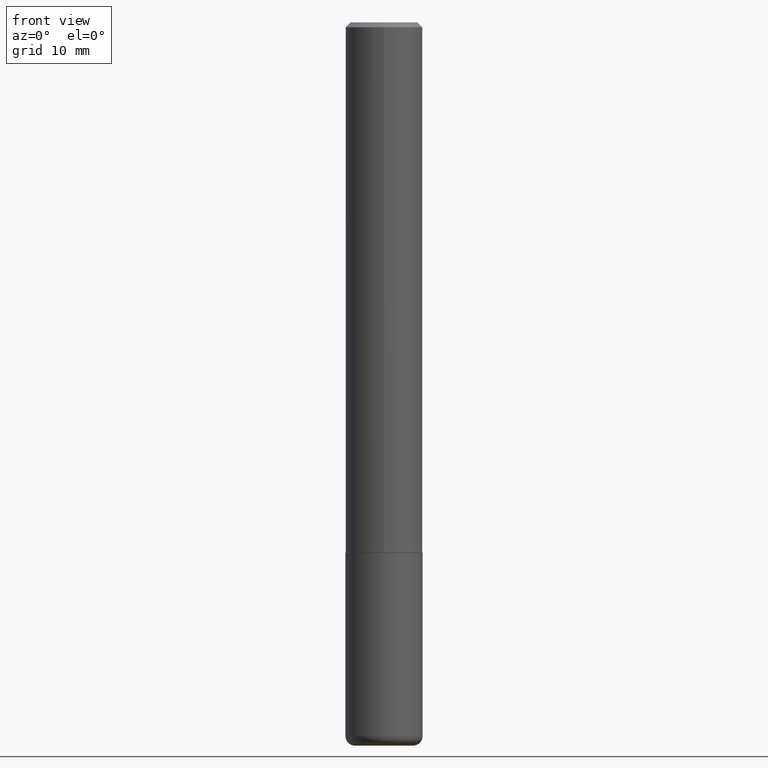
[diagram: clean part render]
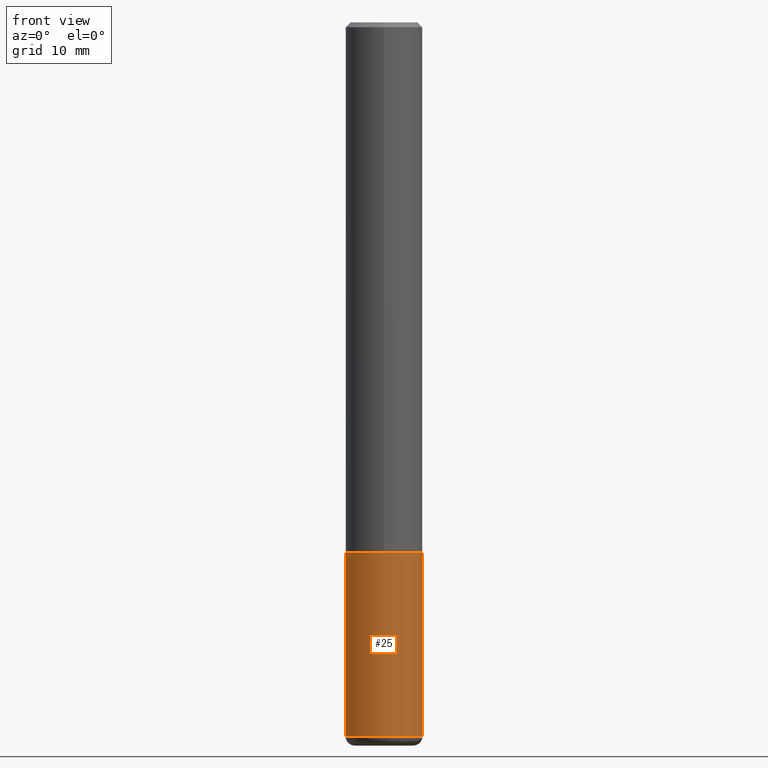
[diagram: same view with one face highlighted and labeled with its STEP entity id]
A machine part, front view. The second image highlights one B-rep face of the part: STEP entity #25.
In plain terms, the highlighted cylindrical surface (partial cylindrical patch) has radius 4.0005 mm, axis along (-0, 0, 1).
Its self-contained STEP definition (entity closure, byte-faithful):
#6 = CARTESIAN_POINT ( 'NONE',  ( 0.000000000000000000, 0.000000000000000000, 0.000000000000000000 ) ) ;
#23 = DIRECTION ( 'NONE',  ( -2.445468806185136877E-29, 3.491481338843145188E-15, 1.000000000000000000 ) ) ;
#25 = ADVANCED_FACE ( 'NONE', ( #176 ), #396, .T. ) ;
#26 = ORIENTED_EDGE ( 'NONE', *, *, #55, .T. ) ;
#36 = ORIENTED_EDGE ( 'NONE', *, *, #198, .F. ) ;
#45 = CARTESIAN_POINT ( 'NONE',  ( 0.1575000000000000289, -1.127189835432120758E-14, -2.913399999999999768 ) ) ;
#55 = EDGE_CURVE ( 'NONE', #321, #323, #145, .T. ) ;
#85 = CARTESIAN_POINT ( 'NONE',  ( -0.1575000000000000289, -9.052976923763463288E-15, -2.913399999999999768 ) ) ;
#103 = ORIENTED_EDGE ( 'NONE', *, *, #260, .F. ) ;
#145 = CIRCLE ( 'NONE', #293, 0.1575000000000000011 ) ;
#153 = DIRECTION ( 'NONE',  ( -2.445468806185136597E-29, 3.491481338843145583E-15, 1.000000000000000000 ) ) ;
#154 = VECTOR ( 'NONE', #342, 39.37007874015748143 ) ;
#156 = CARTESIAN_POINT ( 'NONE',  ( -0.1575000000000000011, 1.119104808822157801E-15, -7.747322767151475583E-30 ) ) ;
#157 = DIRECTION ( 'NONE',  ( 1.000000000000000000, -6.982962677686268288E-15, 0.000000000000000000 ) ) ;
#176 = FACE_OUTER_BOUND ( 'NONE', #223, .T. ) ;
#180 = DIRECTION ( 'NONE',  ( 1.000000000000000000, -6.982962677686261977E-15, 0.000000000000000000 ) ) ;
#193 = VERTEX_POINT ( 'NONE', #310 ) ;
#198 = EDGE_CURVE ( 'NONE', #321, #193, #280, .T. ) ;
#208 = CARTESIAN_POINT ( 'NONE',  ( 0.1575000000000000011, -1.099816621735586889E-15, 7.679978421878598033E-30 ) ) ;
#210 = EDGE_CURVE ( 'NONE', #323, #232, #243, .T. ) ;
#211 = DIRECTION ( 'NONE',  ( -2.445468806185136597E-29, 3.491481338843145583E-15, 1.000000000000000000 ) ) ;
#223 = EDGE_LOOP ( 'NONE', ( #36, #26, #257, #103 ) ) ;
#232 = VERTEX_POINT ( 'NONE', #240 ) ;
#240 = CARTESIAN_POINT ( 'NONE',  ( 0.1575000000000000011, -8.660270312866534114E-15, -2.165399999999999991 ) ) ;
#243 = LINE ( 'NONE', #208, #154 ) ;
#257 = ORIENTED_EDGE ( 'NONE', *, *, #210, .T. ) ;
#260 = EDGE_CURVE ( 'NONE', #193, #232, #286, .T. ) ;
#264 = VECTOR ( 'NONE', #23, 39.37007874015748143 ) ;
#280 = LINE ( 'NONE', #156, #264 ) ;
#286 = CIRCLE ( 'NONE', #368, 0.1575000000000000011 ) ;
#293 = AXIS2_PLACEMENT_3D ( 'NONE', #331, #153, #180 ) ;
#310 = CARTESIAN_POINT ( 'NONE',  ( -0.1575000000000000011, -7.747162903036124976E-15, -2.165399999999999991 ) ) ;
#321 = VERTEX_POINT ( 'NONE', #85 ) ;
#323 = VERTEX_POINT ( 'NONE', #45 ) ;
#331 = CARTESIAN_POINT ( 'NONE',  ( 7.124628819939776708E-29, -1.017208173258561931E-14, -2.913399999999999768 ) ) ;
#341 = DIRECTION ( 'NONE',  ( -2.445468806185136597E-29, 3.491481338843145583E-15, 1.000000000000000000 ) ) ;
#342 = DIRECTION ( 'NONE',  ( -2.445468806185136877E-29, 3.491481338843145188E-15, 1.000000000000000000 ) ) ;
#364 = CARTESIAN_POINT ( 'NONE',  ( 5.295418152913294345E-29, -7.560453691130947423E-15, -2.165399999999999991 ) ) ;
#368 = AXIS2_PLACEMENT_3D ( 'NONE', #364, #211, #157 ) ;
#369 = DIRECTION ( 'NONE',  ( 1.000000000000000000, -6.982962677686265922E-15, 4.876176775795935232E-29 ) ) ;
#376 = AXIS2_PLACEMENT_3D ( 'NONE', #6, #341, #369 ) ;
#396 = CYLINDRICAL_SURFACE ( 'NONE', #376, 0.1575000000000000011 ) ;